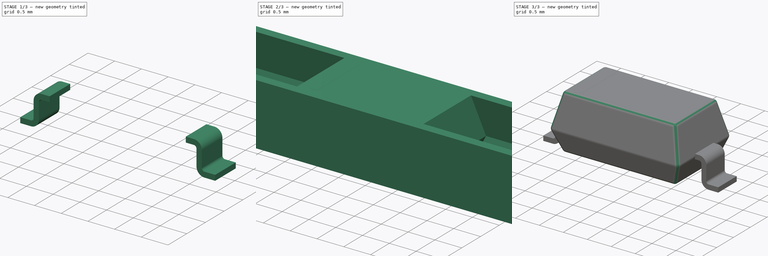
[diagram: build sequence overview — one tinted view per stage of 3, left to right]
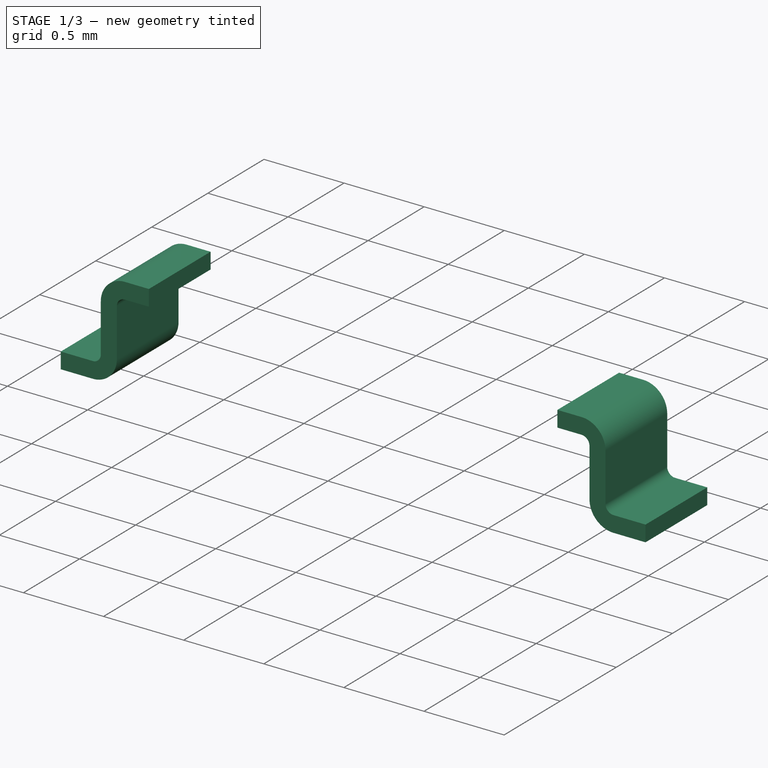
[diagram: stage 1 of 3 — iso view after this stage's code; geometry added in this stage tinted green]
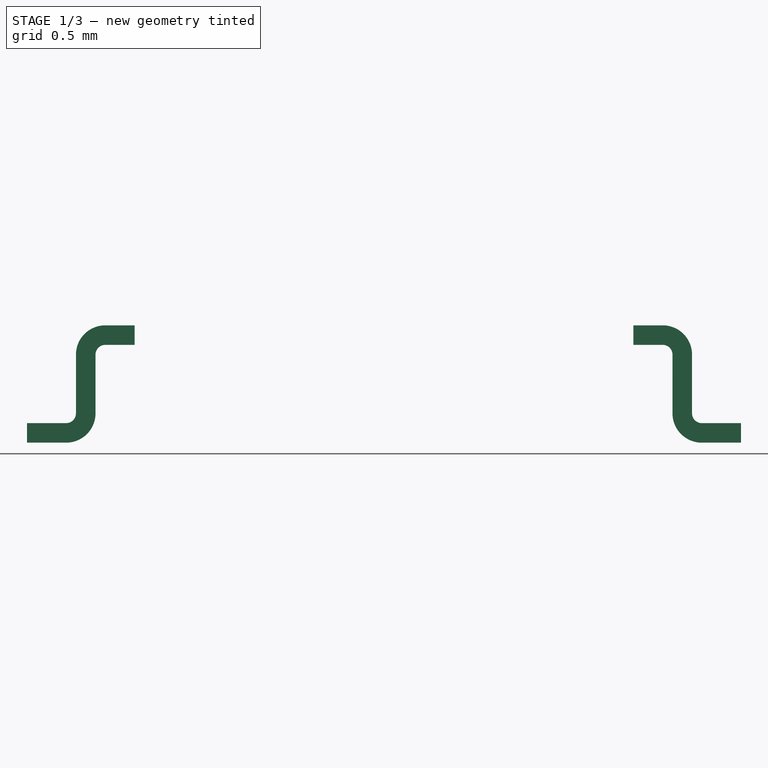
[diagram: stage 1 of 3 — front view after this stage's code; geometry added in this stage tinted green]
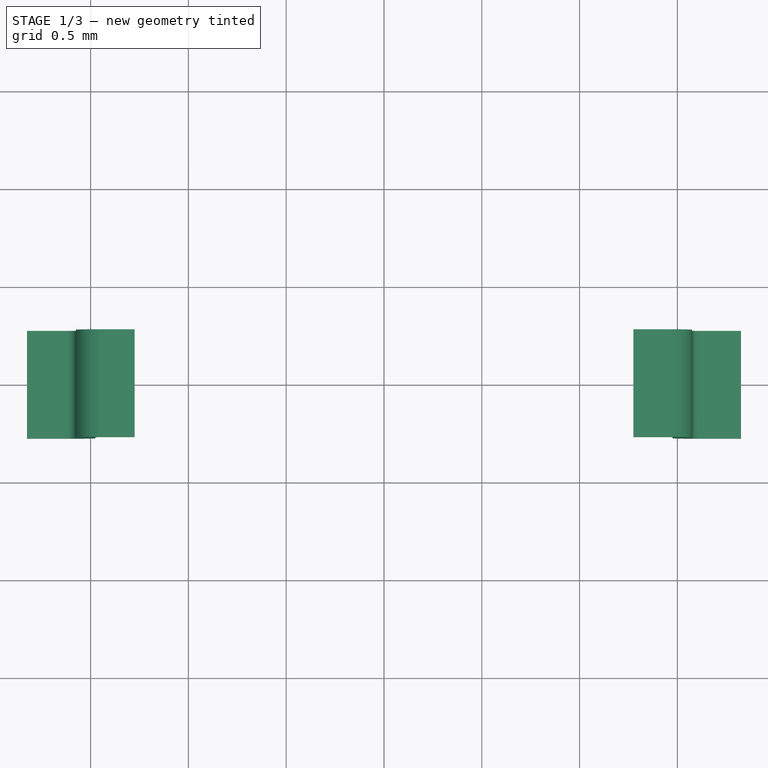
[diagram: stage 1 of 3 — top view after this stage's code; geometry added in this stage tinted green]
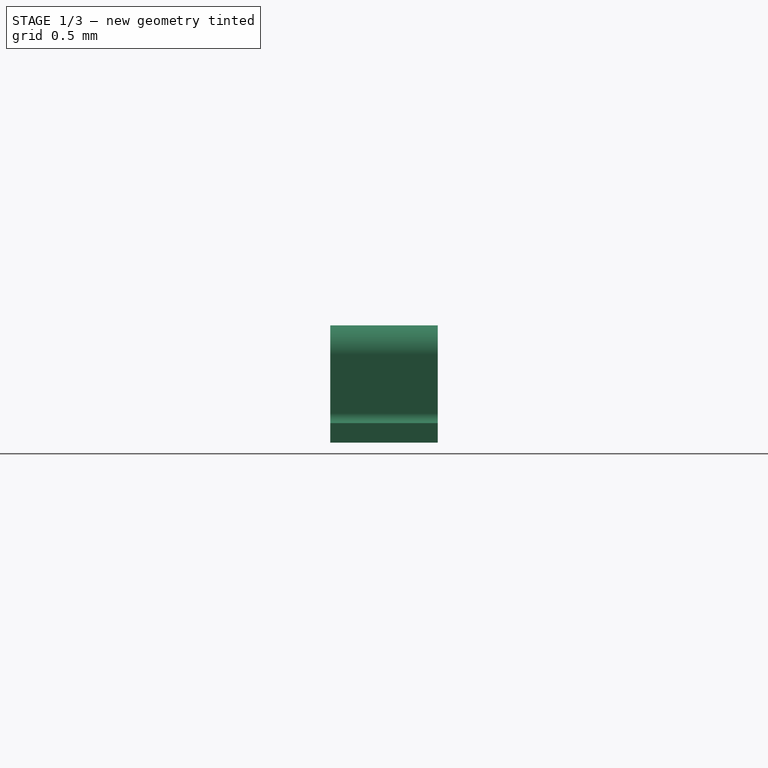
[diagram: stage 1 of 3 — right view after this stage's code; geometry added in this stage tinted green]
FCSTD DOCUMENT  (FreeCAD 0.16R6698 (Git))
Label: sod-123
License: All rights reserved
LicenseURL: http://en.wikipedia.org/wiki/All_rights_reserved
objects: Sketcher::SketchObject×8, PartDesign::Pad×3, Part::Feature×3, App::DocumentObjectGroup×3, Part::Sweep×2, Part::Cut×1, PartDesign::Fillet×1
note: 21 computed .brp shape members not serialized (recipe doc carries the construction recipe); baked Part::Feature solids carry a one-line shape summary decoded from their .brp

FEATURE [App::DocumentObjectGroup] Grupo  label="paquete"
  Group = -> [Cut,Fillet,Sketch002,Pad002]
FEATURE [Sketcher::SketchObject] Sketch004  label="seccion"
  Placement = pos=(0,0,0) rot=(0.57735,0.57735,0.57735;2.0944rad)
  sketch-geometry (4):
    g0: LineSegment StartX=-0.275 StartY=0.1 StartZ=0 EndX=0.275 EndY=0.1 EndZ=0
    g1: LineSegment StartX=0.275 StartY=0.1 StartZ=0 EndX=0.275 EndY=0 EndZ=0
    g2: LineSegment StartX=0.275 StartY=0 StartZ=0 EndX=-0.275 EndY=0 EndZ=0
    g3: LineSegment StartX=-0.275 StartY=0 StartZ=0 EndX=-0.275 EndY=0.1 EndZ=0
  constraints (12):
    c: Coincident(g0,g1)
    c: Coincident(g1,g2)
    c: Coincident(g2,g3)
    c: Coincident(g3,g0)
    c: Horizontal(g0)
    c: Horizontal(g2)
    c: Vertical(g1)
    c: Vertical(g3)
    c: Symmetric(g0,g0,g-2)
    c: PointOnObject(g1,g-1)
    c: DistanceX(g0,g0) = 0.55
    c: DistanceY(g3,g3) = 0.1
FEATURE [Sketcher::SketchObject] Sketch005  label="barrido"
  Placement = pos=(0,0,0) rot=(-1,0,0;4.71239rad)
  sketch-geometry (5):
    g0: LineSegment StartX=0 StartY=0.05 StartZ=0 EndX=0.2 EndY=0.05 EndZ=0
    g1: LineSegment StartX=0.3 StartY=0.45 StartZ=0 EndX=0.3 EndY=0.15 EndZ=0
    g2: LineSegment StartX=0.4 StartY=0.55 StartZ=0 EndX=0.55 EndY=0.55 EndZ=0
    g3: ArcOfCircle CenterX=0.4 CenterY=0.45 CenterZ=0 NormalX=0 NormalY=0 NormalZ=1 Radius=0.1 StartAngle=1.5708 EndAngle=3.14159
    g4: ArcOfCircle CenterX=0.2 CenterY=0.15 CenterZ=0 NormalX=0 NormalY=0 NormalZ=1 Radius=0.1 StartAngle=4.71239 EndAngle=6.28319
  constraints (14):
    c: Horizontal(g2)
    c: Horizontal(g0)
    c: Vertical(g1)
    c: Tangent(g2,g3) = 1.5708
    c: Tangent(g1,g3) = -1.5708
    c: Tangent(g0,g4) = -1.5708
    c: Tangent(g1,g4) = 1.5708
    c: PointOnObject(g0,g-2)
    c: DistanceY(g0) = 0.05
    c: DistanceX(g1) = 0.3
    c: DistanceY(g2) = 0.55
    c: DistanceX(g2) = 0.55
    c: Radius(g3) = 0.1
    c: Radius(g4) = 0.1
FEATURE [Part::Sweep] Sweep
  Frenet = false
  Placement = pos=(-1.825,0,0) rot=(0,0,1;0rad)
  Sections = -> [Sketch004]
  Solid = true
  Spine = -> Sketch005 [Edge5,Edge4,Edge3,Edge2,Edge1]
  Transition = 1
FEATURE [Sketcher::SketchObject] Sketch006  label="seccion001"
  Placement = pos=(0,0,0) rot=(0.57735,0.57735,0.57735;2.0944rad)
  sketch-geometry (4):
    g0: LineSegment StartX=-0.275 StartY=0.1 StartZ=0 EndX=0.275 EndY=0.1 EndZ=0
    g1: LineSegment StartX=0.275 StartY=0.1 StartZ=0 EndX=0.275 EndY=0 EndZ=0
    g2: LineSegment StartX=0.275 StartY=0 StartZ=0 EndX=-0.275 EndY=0 EndZ=0
    g3: LineSegment StartX=-0.275 StartY=0 StartZ=0 EndX=-0.275 EndY=0.1 EndZ=0
  constraints (12):
    c: Coincident(g0,g1)
    c: Coincident(g1,g2)
    c: Coincident(g2,g3)
    c: Coincident(g3,g0)
    c: Horizontal(g0)
    c: Horizontal(g2)
    c: Vertical(g1)
    c: Vertical(g3)
    c: Symmetric(g0,g0,g-2)
    c: PointOnObject(g1,g-1)
    c: DistanceX(g0,g0) = 0.55
    c: DistanceY(g3,g3) = 0.1
FEATURE [Sketcher::SketchObject] Sketch007  label="barrido001"
  Placement = pos=(0,0,0) rot=(0,0.707107,0.707107;3.14159rad)
  sketch-geometry (5):
    g0: LineSegment StartX=0 StartY=0.05 StartZ=0 EndX=0.2 EndY=0.05 EndZ=0
    g1: LineSegment StartX=0.3 StartY=0.45 StartZ=0 EndX=0.3 EndY=0.15 EndZ=0
    g2: LineSegment StartX=0.4 StartY=0.55 StartZ=0 EndX=0.55 EndY=0.55 EndZ=0
    g3: ArcOfCircle CenterX=0.4 CenterY=0.45 CenterZ=0 NormalX=0 NormalY=0 NormalZ=1 Radius=0.1 StartAngle=1.5708 EndAngle=3.14159
    g4: ArcOfCircle CenterX=0.2 CenterY=0.15 CenterZ=0 NormalX=0 NormalY=0 NormalZ=1 Radius=0.1 StartAngle=4.71239 EndAngle=6.28319
  constraints (14):
    c: Horizontal(g2)
    c: Horizontal(g0)
    c: Vertical(g1)
    c: Tangent(g2,g3) = 1.5708
    c: Tangent(g1,g3) = -1.5708
    c: Tangent(g0,g4) = -1.5708
    c: Tangent(g1,g4) = 1.5708
    c: PointOnObject(g0,g-2)
    c: DistanceY(g0) = 0.05
    c: DistanceX(g1) = 0.3
    c: DistanceY(g2) = 0.55
    c: DistanceX(g2) = 0.55
    c: Radius(g3) = 0.1
    c: Radius(g4) = 0.1
FEATURE [Part::Sweep] Sweep001
  Frenet = false
  Placement = pos=(1.825,0,0) rot=(0,0,1;0rad)
  Sections = -> [Sketch006]
  Solid = true
  Spine = -> Sketch007 [Edge5,Edge4,Edge3,Edge2,Edge1]
  Transition = 1
FEATURE [App::DocumentObjectGroup] Grupo001  label="patillas"
  Group = -> [Sketch005,Sweep,Sketch007,Sweep001]
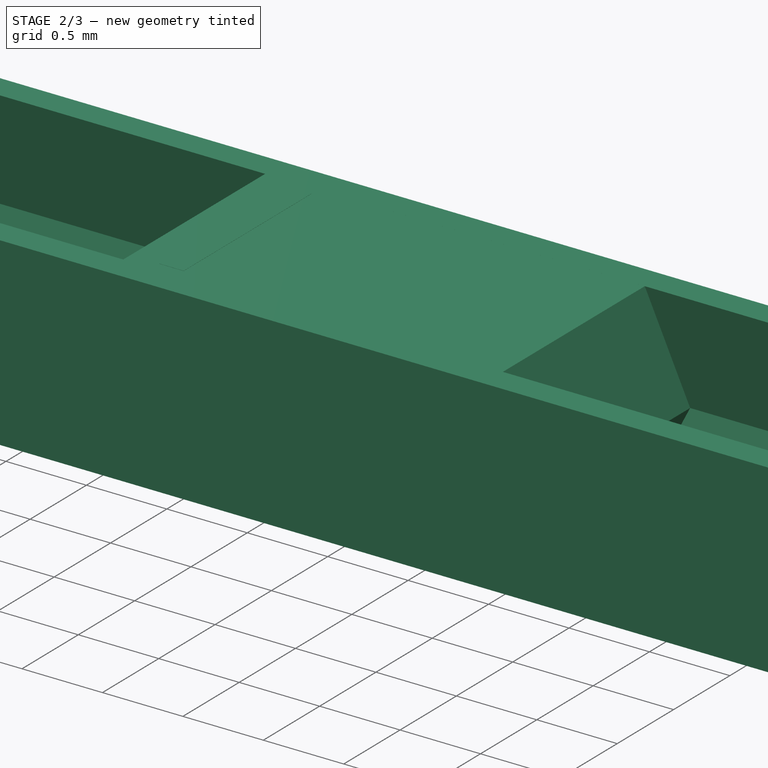
[diagram: stage 2 of 3 — iso view after this stage's code; geometry added in this stage tinted green]
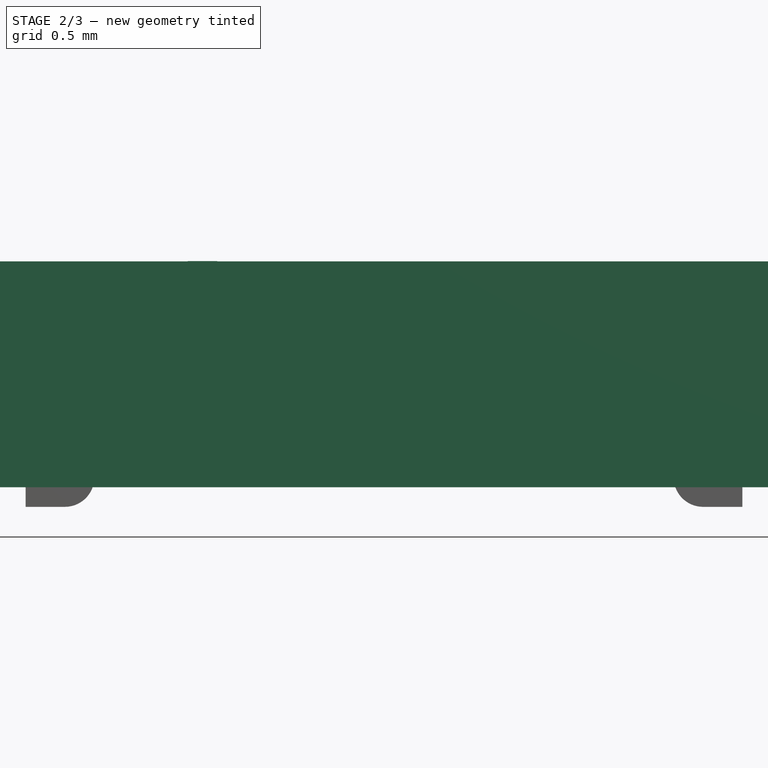
[diagram: stage 2 of 3 — front view after this stage's code; geometry added in this stage tinted green]
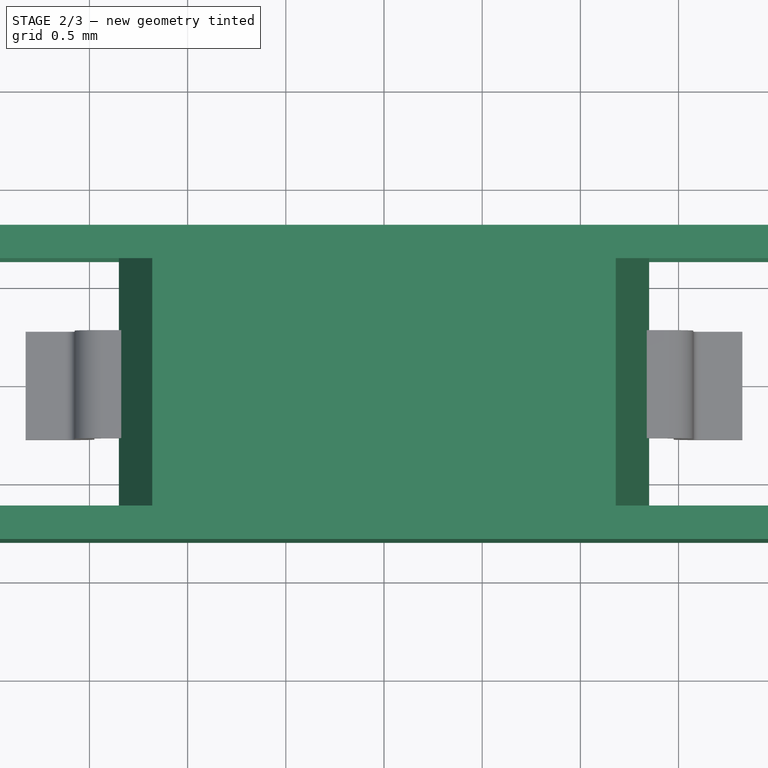
[diagram: stage 2 of 3 — top view after this stage's code; geometry added in this stage tinted green]
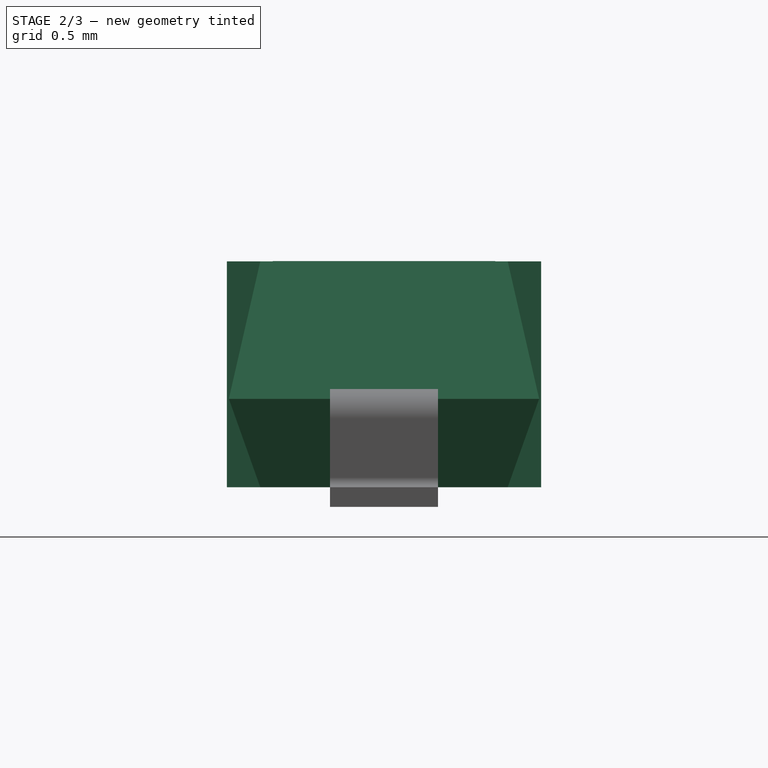
[diagram: stage 2 of 3 — right view after this stage's code; geometry added in this stage tinted green]
FEATURE [Sketcher::SketchObject] Sketch
  Placement = pos=(0,0,0) rot=(1,0,0;1.5708rad)
  sketch-geometry (6):
    g0: LineSegment StartX=-1.18 StartY=1.25 StartZ=0 EndX=1.18 EndY=1.25 EndZ=0
    g1: LineSegment StartX=1.18 StartY=1.25 StartZ=0 EndX=1.35 EndY=0.55 EndZ=0
    g2: LineSegment StartX=1.35 StartY=0.55 StartZ=0 EndX=1.18 EndY=0.1 EndZ=0
    g3: LineSegment StartX=1.18 StartY=0.1 StartZ=0 EndX=-1.18 EndY=0.1 EndZ=0
    g4: LineSegment StartX=-1.18 StartY=0.1 StartZ=0 EndX=-1.35 EndY=0.55 EndZ=0
    g5: LineSegment StartX=-1.35 StartY=0.55 StartZ=0 EndX=-1.18 EndY=1.25 EndZ=0
  constraints (17):
    c: Coincident(g0,g1)
    c: Coincident(g1,g2)
    c: Coincident(g2,g3)
    c: Coincident(g3,g4)
    c: Coincident(g4,g5)
    c: Coincident(g5,g0)
    c: Horizontal(g0)
    c: Horizontal(g3)
    c: Symmetric(g0,g0,g-2)
    c: Symmetric(g3,g2,g-2)
    c: Symmetric(g4,g1,g-2)
    c: Equal(g0,g3)
    c: DistanceY(g3) = 0.1
    c: DistanceX(g4,g1) = 2.7
    c: DistanceY(g3,g0) = 1.15
    c: DistanceY(g4) = 0.55
    c: DistanceX(g5,g5) = 0.17
FEATURE [PartDesign::Pad] Pad
  Length = 1.6
  Length2 = 100
  Midplane = true
  Placement = pos=(0,0,0) rot=(1,0,0;1.5708rad)
  Sketch = -> Sketch
  Type = 0
FEATURE [Sketcher::SketchObject] Sketch001
  Placement = pos=(0,0,0) rot=(0.57735,0.57735,0.57735;2.0944rad)
  sketch-geometry (10):
    g0: LineSegment StartX=-0.8 StartY=1.25 StartZ=0 EndX=-0.63 EndY=1.25 EndZ=0
    g1: LineSegment StartX=-0.63 StartY=1.25 StartZ=0 EndX=-0.79 EndY=0.55 EndZ=0
    g2: LineSegment StartX=-0.79 StartY=0.55 StartZ=0 EndX=-0.63 EndY=0.1 EndZ=0
    g3: LineSegment StartX=-0.63 StartY=0.1 StartZ=0 EndX=-0.8 EndY=0.1 EndZ=0
    g4: LineSegment StartX=-0.8 StartY=0.1 StartZ=0 EndX=-0.8 EndY=1.25 EndZ=0
    g5: LineSegment StartX=0.8 StartY=1.25 StartZ=0 EndX=0.63 EndY=1.25 EndZ=0
    g6: LineSegment StartX=0.63 StartY=1.25 StartZ=0 EndX=0.79 EndY=0.55 EndZ=0
    g7: LineSegment StartX=0.79 StartY=0.55 StartZ=0 EndX=0.63 EndY=0.1 EndZ=0
    g8: LineSegment StartX=0.63 StartY=0.1 StartZ=0 EndX=0.8 EndY=0.1 EndZ=0
    g9: LineSegment StartX=0.8 StartY=0.1 StartZ=0 EndX=0.8 EndY=1.25 EndZ=0
  constraints (27):
    c: Coincident(g0,g1)
    c: Coincident(g1,g2)
    c: Coincident(g2,g3)
    c: Coincident(g3,g4)
    c: Coincident(g4,g0)
    c: Coincident(g5,g6)
    c: Coincident(g6,g7)
    c: Coincident(g7,g8)
    c: Coincident(g8,g9)
    c: Coincident(g9,g5)
    c: Symmetric(g0,g5,g-2)
    c: Vertical(g4)
    c: Symmetric(g3,g8,g-2)
    c: Equal(g3,g8)
    c: Equal(g8,g5)
    c: Equal(g5,g0)
    c: Horizontal(g0)
    c: Symmetric(g0,g5,g-2)
    c: Symmetric(g2,g7,g-2)
    c: Horizontal(g3)
    c: DistanceY(g3) = 0.1
    c: DistanceX(g3,g1) = 0.01
    c: Symmetric(g6,g1,g-2)
    c: DistanceY(g3,g1) = 0.45
    c: DistanceY(g0) = 1.25
    c: DistanceX(g0,g5) = 1.6
    c: DistanceX(g0,g0) = 0.17
FEATURE [PartDesign::Pad] Pad001
  Length = 10
  Length2 = 100
  Midplane = true
  Placement = pos=(0,0,0) rot=(0.57735,0.57735,0.57735;2.0944rad)
  Sketch = -> Sketch001
  Type = 0
FEATURE [Sketcher::SketchObject] Sketch002
  ExternalGeometry = -> [Fillet]
  Placement = pos=(0,0,1.25) rot=(0,0,1;0rad)
  Support = -> Fillet [Face1]
  sketch-geometry (4):
    g0: LineSegment StartX=-0.998846 StartY=0.566223 StartZ=0 EndX=-0.849035 EndY=0.566223 EndZ=0
    g1: LineSegment StartX=-0.849035 StartY=0.566223 StartZ=0 EndX=-0.849035 EndY=-0.566223 EndZ=0
    g2: LineSegment StartX=-0.849035 StartY=-0.566223 StartZ=0 EndX=-0.998846 EndY=-0.566223 EndZ=0
    g3: LineSegment StartX=-0.998846 StartY=-0.566223 StartZ=0 EndX=-0.998846 EndY=0.566223 EndZ=0
  constraints (10):
    c: Coincident(g0,g1)
    c: Coincident(g1,g2)
    c: Coincident(g2,g3)
    c: Coincident(g3,g0)
    c: Horizontal(g0)
    c: Horizontal(g2)
    c: Vertical(g1)
    c: Vertical(g3)
    c: PointOnObject(g1,g-4)
    c: PointOnObject(g0,g-3)
FEATURE [Sketcher::SketchObject] Sketch003
  Placement = pos=(0,0,1.25) rot=(0,0,1;0rad)
  sketch-geometry (4):
    g0: LineSegment StartX=-0.998845 StartY=0.566221 StartZ=0 EndX=-0.848659 EndY=0.566221 EndZ=0
    g1: LineSegment StartX=-0.848659 StartY=0.566221 StartZ=0 EndX=-0.848659 EndY=-0.566744 EndZ=0
    g2: LineSegment StartX=-0.848659 StartY=-0.566744 StartZ=0 EndX=-0.998845 EndY=-0.566744 EndZ=0
    g3: LineSegment StartX=-0.998845 StartY=-0.566744 StartZ=0 EndX=-0.998845 EndY=0.566221 EndZ=0
  constraints (8):
    c: Coincident(g0,g1)
    c: Coincident(g1,g2)
    c: Coincident(g2,g3)
    c: Coincident(g3,g0)
    c: Horizontal(g0)
    c: Horizontal(g2)
    c: Vertical(g1)
    c: Vertical(g3)
FEATURE [PartDesign::Pad] Pad002  label="marca"
  Length = 0.001
  Length2 = 100
  Placement = pos=(0,0,1.25) rot=(0,0,1;0rad)
  Sketch = -> Sketch003
  Type = 0
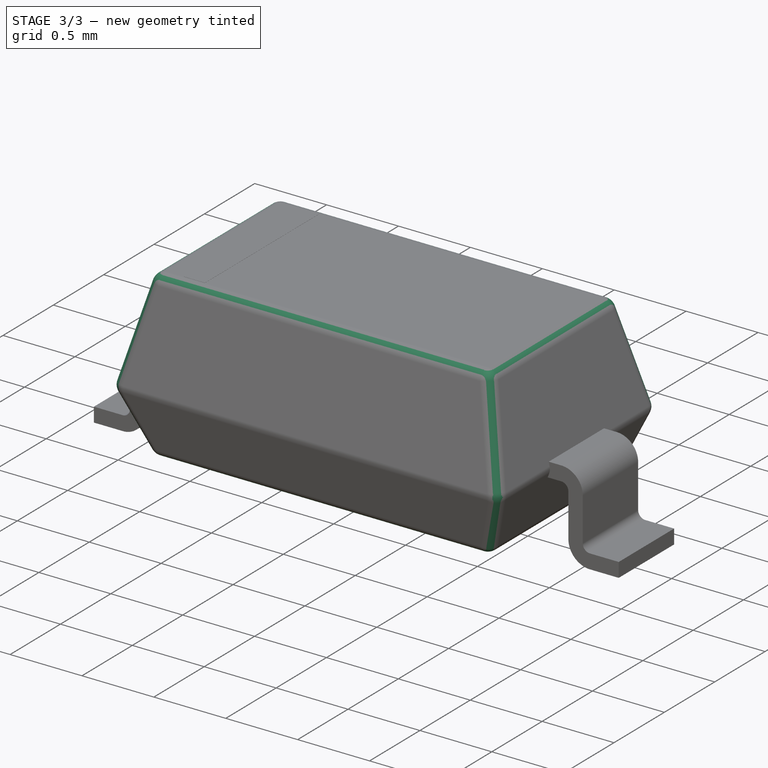
[diagram: stage 3 of 3 — iso view after this stage's code; geometry added in this stage tinted green]
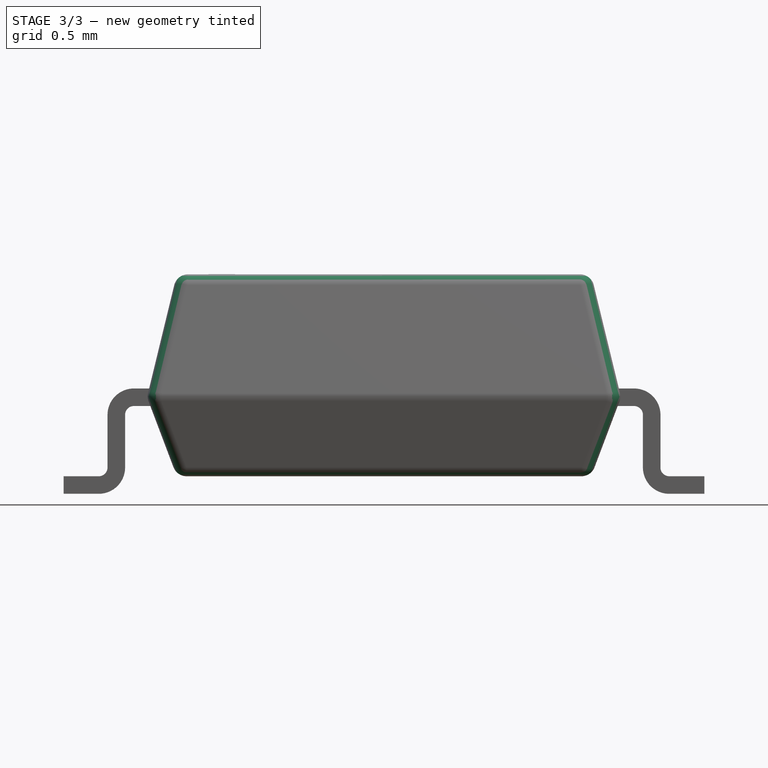
[diagram: stage 3 of 3 — front view after this stage's code; geometry added in this stage tinted green]
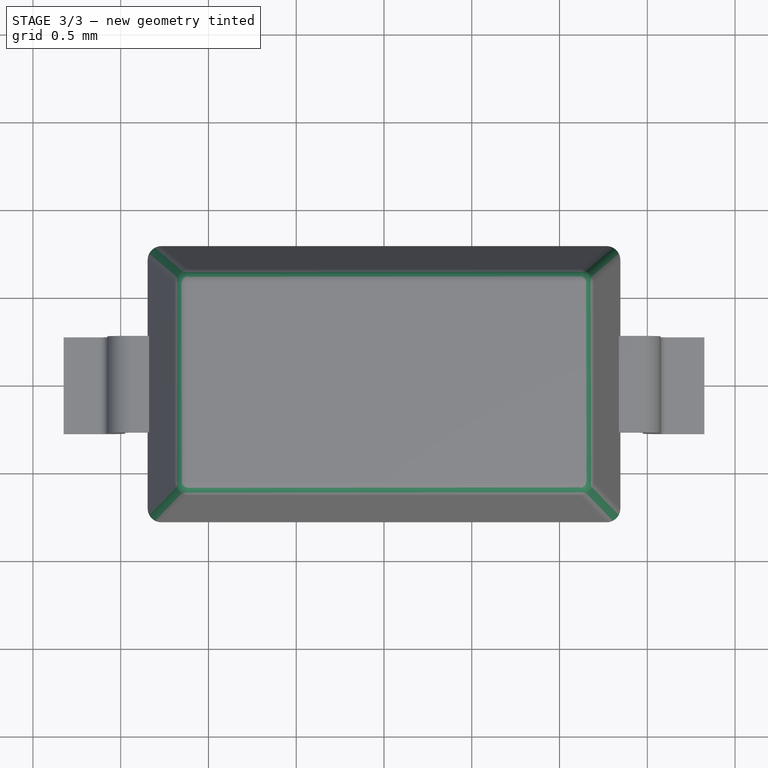
[diagram: stage 3 of 3 — top view after this stage's code; geometry added in this stage tinted green]
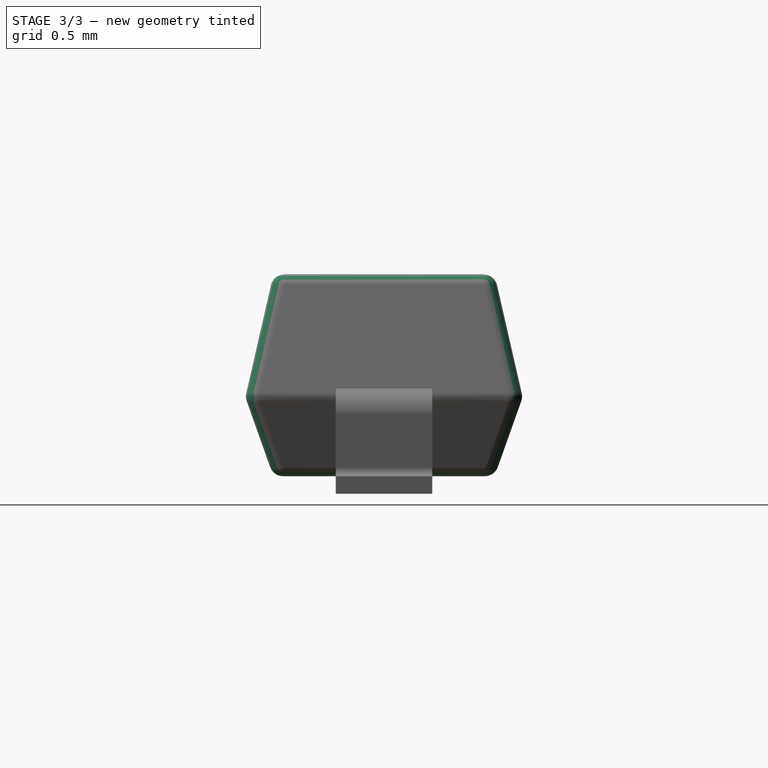
[diagram: stage 3 of 3 — right view after this stage's code; geometry added in this stage tinted green]
FEATURE [Part::Cut] Cut
  Base = -> Pad
  Tool = -> Pad001
FEATURE [Part::Feature] Shape  label="FrontSilk"
  shape: bbox 3.69 x 1.95 x 2e-07 mm, 8 faces, 0 solids (baked)
FEATURE [Part::Feature] Shape001  label="TopPads"
  shape: bbox 4.18 x 1.22 x 0.01 mm, 12 faces, 2 solids (baked)
FEATURE [Part::Feature] Shape002001  label="Pcb_solid"
  shape: bbox 6.688 x 3.12 x 1.58 mm, 6 faces (baked)
FEATURE [App::DocumentObjectGroup] Diodes_SMD_SOD_123_fp
  Group = -> [Shape,Shape001,Shape002001]
FEATURE [PartDesign::Fillet] Fillet  label="cuerpo"
  Base = -> Cut [Edge13,Edge12,Edge18,Edge20,Edge19,Edge17,Edge11,Edge15,Edge16,Edge8,Edge14,Edge6,Edge5,Edge4,Edge10,Edge7,Edge1,Edge9,Edge2,Edge3]
  Radius = 0.08
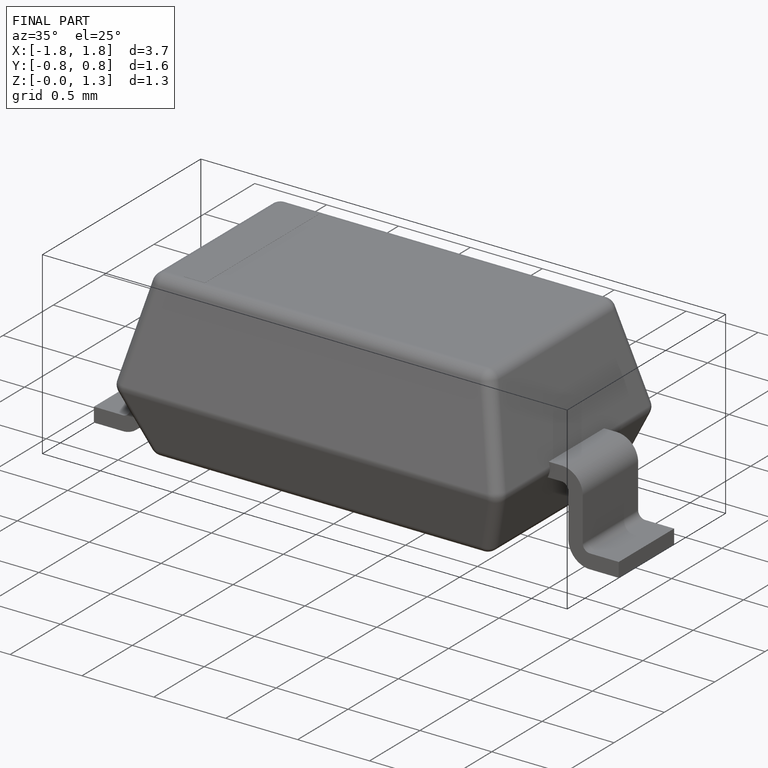
[diagram: finished part — iso view with bounding-box wireframe]
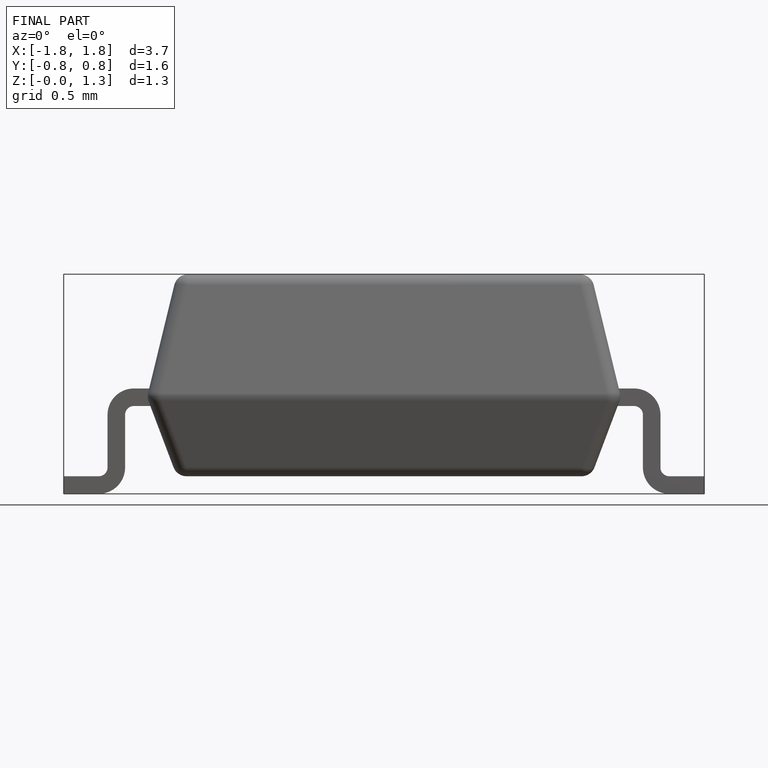
[diagram: finished part — front view with bounding-box wireframe]
